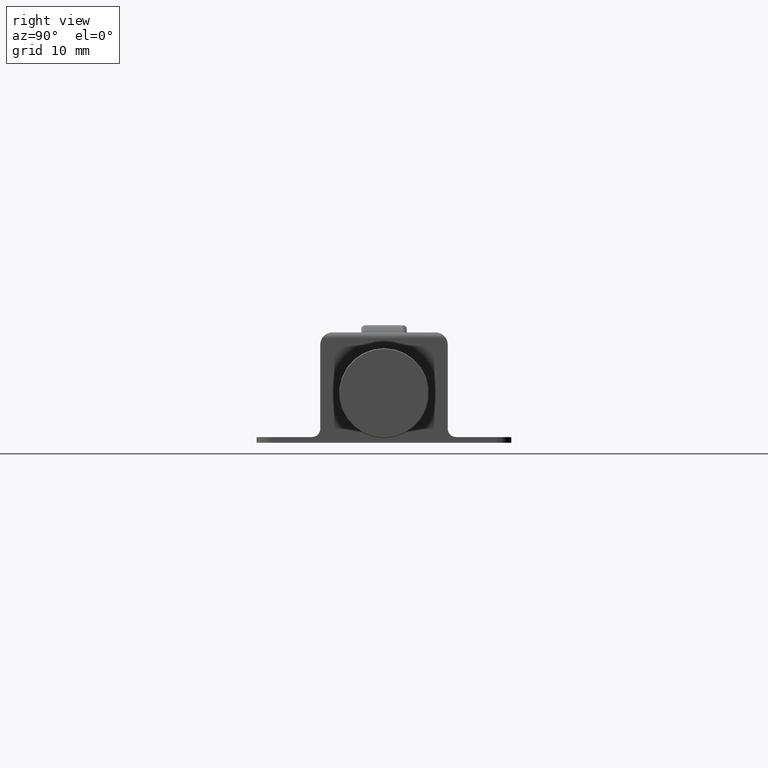
[diagram: clean part render]
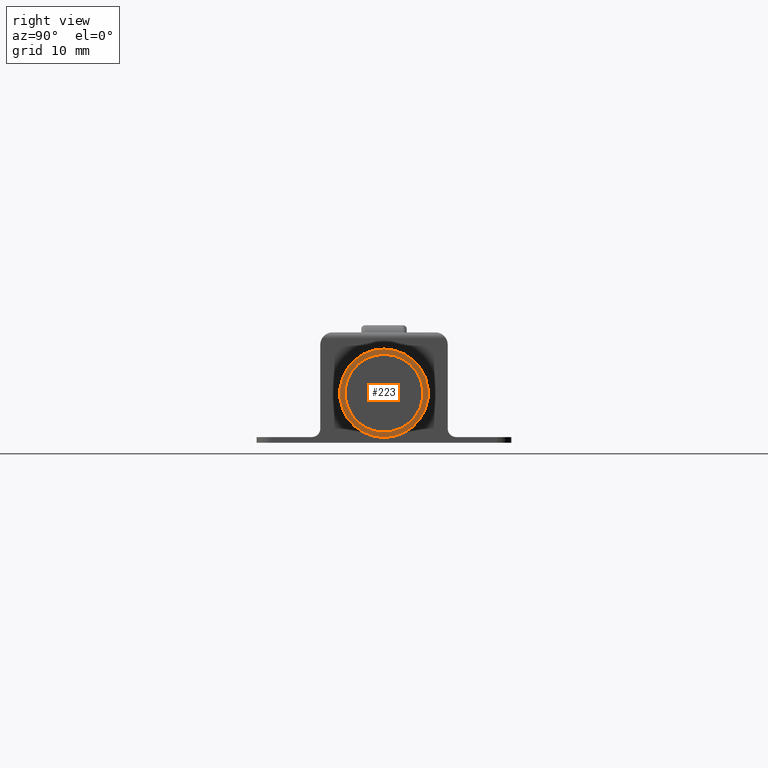
[diagram: same view with one face highlighted and labeled with its STEP entity id]
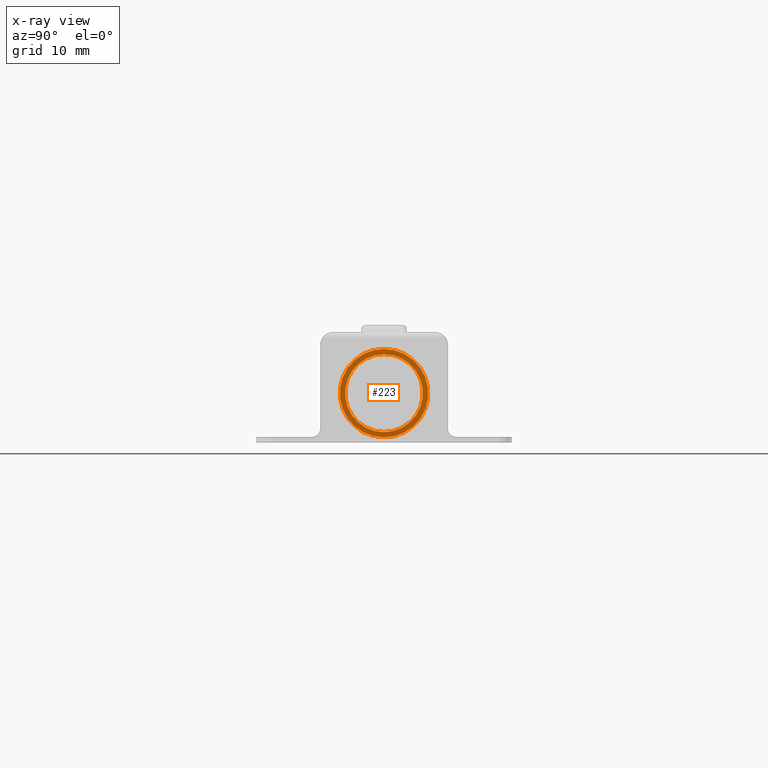
[diagram: x-ray of the same camera — body ghosted, the highlighted face saturated]
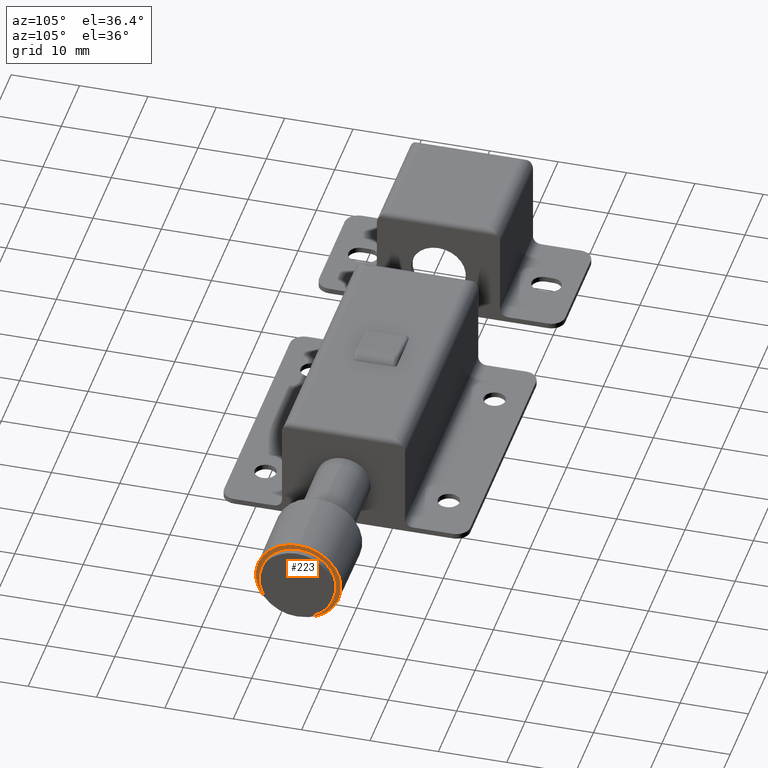
[diagram: same view with one face highlighted and labeled with its STEP entity id]
A machine part, right view. The second image highlights one B-rep face of the part: STEP entity #223.
The next image is the same camera in x-ray: the body ghosted, the highlighted face saturated — about 0% of this face is hidden behind the body in this view.
A second angle (auxiliary view) of the same face is appended — the face is thin or edge-on in the first view.
In plain terms, the highlighted planar face has unit normal (1, 0, 0).
Its self-contained STEP definition (entity closure, byte-faithful):
#223=ADVANCED_FACE('',(#1041,#1042),#1040,.T.);
#1040=PLANE('',#2046);
#1041=FACE_OUTER_BOUND('',#2047,.T.);
#1042=FACE_BOUND('',#2048,.T.);
#2043=CARTESIAN_POINT('',(5.71000000000E+01,-1.29903810568E+01,1.43250000000E+01));
#2044=DIRECTION('',(1.00000000000E+00,0.00000000000E+00,0.00000000000E+00));
#2045=DIRECTION('',(0.00000000000E+00,0.00000000000E+00,-1.00000000000E+00));
#2046=AXIS2_PLACEMENT_3D('',#2043,#2044,#2045);
#2047=EDGE_LOOP('',(#2749,#2750));
#2048=EDGE_LOOP('',(#2751,#2752));
#2749=ORIENTED_EDGE('',*,*,#3236,.F.);
#2750=ORIENTED_EDGE('',*,*,#3237,.F.);
#2751=ORIENTED_EDGE('',*,*,#3238,.T.);
#2752=ORIENTED_EDGE('',*,*,#3239,.T.);
#3236=EDGE_CURVE('',#4724,#4725,#4726,.T.);
#3237=EDGE_CURVE('',#4725,#4724,#4732,.T.);
#3238=EDGE_CURVE('',#4738,#4739,#4740,.T.);
#3239=EDGE_CURVE('',#4739,#4738,#4746,.T.);
#4724=VERTEX_POINT('',#6449);
#4725=VERTEX_POINT('',#6450);
#4726=CIRCLE('',#6454,6.25000000000E+00);
#4732=CIRCLE('',#6458,6.25000000000E+00);
#4738=VERTEX_POINT('',#6459);
#4739=VERTEX_POINT('',#6460);
#4740=CIRCLE('',#6464,5.50000000000E+00);
#4746=CIRCLE('',#6468,5.50000000000E+00);
#6449=CARTESIAN_POINT('',(5.71000000000E+01,0.00000000000E+00,-4.99999999999E-02));
#6450=CARTESIAN_POINT('',(5.71000000000E+01,0.00000000000E+00,1.24500000000E+01));
#6451=CARTESIAN_POINT('',(5.71000000000E+01,0.00000000000E+00,6.20000000000E+00));
#6452=DIRECTION('',(-1.00000000000E+00,0.00000000000E+00,0.00000000000E+00));
#6453=DIRECTION('',(0.00000000000E+00,-1.22460635382E-16,1.00000000000E+00));
#6454=AXIS2_PLACEMENT_3D('',#6451,#6452,#6453);
#6455=CARTESIAN_POINT('',(5.71000000000E+01,0.00000000000E+00,6.20000000000E+00));
#6456=DIRECTION('',(-1.00000000000E+00,0.00000000000E+00,0.00000000000E+00));
#6457=DIRECTION('',(0.00000000000E+00,-1.22460635382E-16,1.00000000000E+00));
#6458=AXIS2_PLACEMENT_3D('',#6455,#6456,#6457);
#6459=CARTESIAN_POINT('',(5.71000000000E+01,0.00000000000E+00,1.17000000000E+01));
#6460=CARTESIAN_POINT('',(5.71000000000E+01,2.96059473233E-16,7.00000000000E-01));
#6461=CARTESIAN_POINT('',(5.71000000000E+01,0.00000000000E+00,6.20000000000E+00));
#6462=DIRECTION('',(-1.00000000000E+00,0.00000000000E+00,0.00000000000E+00));
#6463=DIRECTION('',(0.00000000000E+00,-1.22460635382E-16,1.00000000000E+00));
#6464=AXIS2_PLACEMENT_3D('',#6461,#6462,#6463);
#6465=CARTESIAN_POINT('',(5.71000000000E+01,0.00000000000E+00,6.20000000000E+00));
#6466=DIRECTION('',(-1.00000000000E+00,0.00000000000E+00,0.00000000000E+00));
#6467=DIRECTION('',(0.00000000000E+00,-1.22460635382E-16,1.00000000000E+00));
#6468=AXIS2_PLACEMENT_3D('',#6465,#6466,#6467);